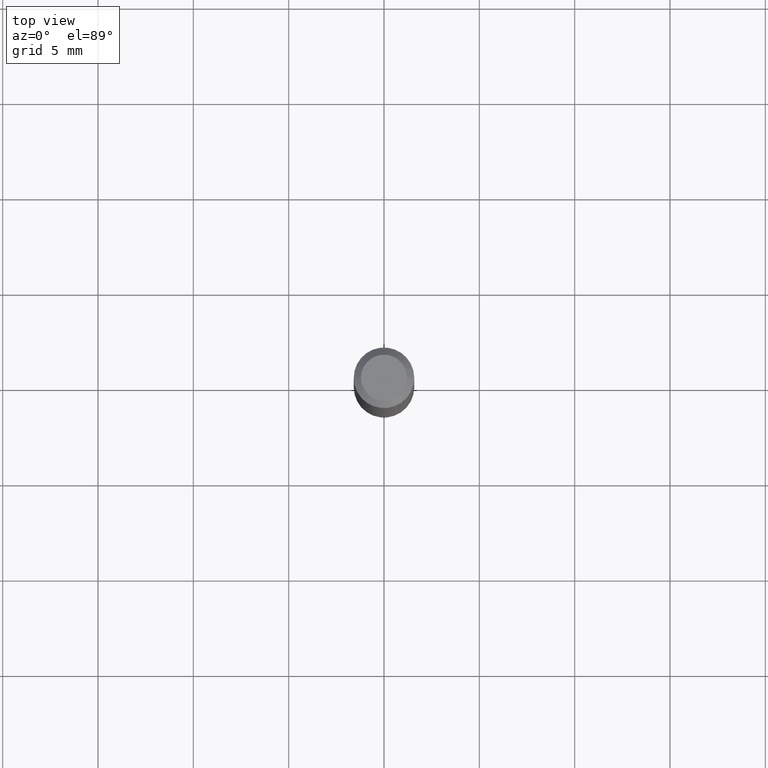
[diagram: clean part render]
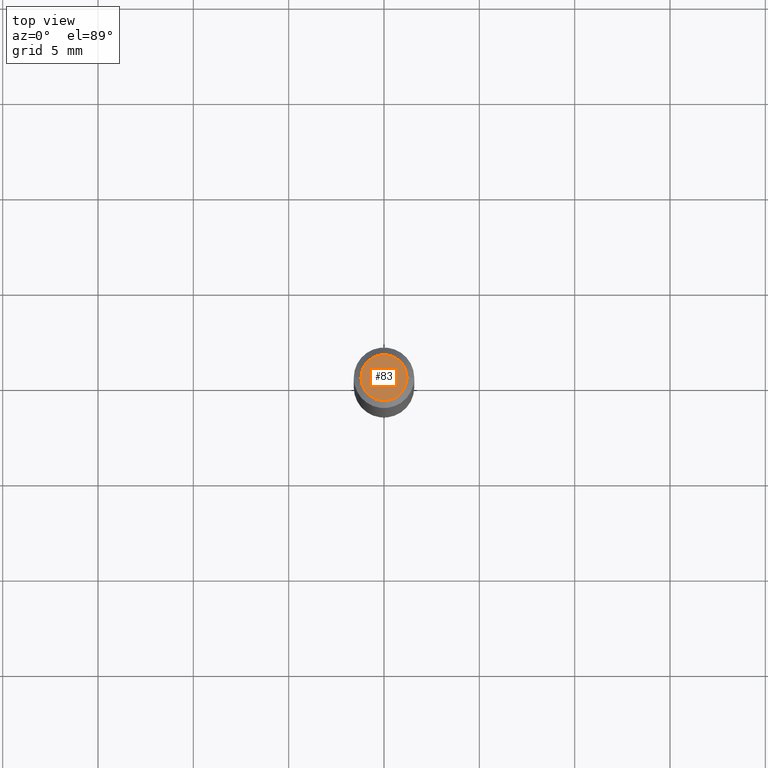
[diagram: same view with one face highlighted and labeled with its STEP entity id]
A machine part, top view. The second image highlights one B-rep face of the part: STEP entity #83.
In plain terms, the highlighted planar face has unit normal (0, -0, -1).
Its self-contained STEP definition (entity closure, byte-faithful):
#37 = AXIS2_PLACEMENT_3D ( 'NONE', #470, #389, #183 ) ;
#47 = PLANE ( 'NONE',  #114 ) ;
#59 = ORIENTED_EDGE ( 'NONE', *, *, #198, .T. ) ;
#76 = DIRECTION ( 'NONE',  ( 1.000000000000000000, -6.982962677686266711E-15, 4.852736867747365086E-29 ) ) ;
#83 = ADVANCED_FACE ( 'NONE', ( #440 ), #47, .F. ) ;
#114 = AXIS2_PLACEMENT_3D ( 'NONE', #199, #453, #124 ) ;
#115 = DIRECTION ( 'NONE',  ( -2.445468806185136597E-29, 3.491481338843145583E-15, 1.000000000000000000 ) ) ;
#120 = CARTESIAN_POINT ( 'NONE',  ( -6.680649051745406845E-45, 9.538196290434862081E-31, 2.731847993664263218E-16 ) ) ;
#121 = AXIS2_PLACEMENT_3D ( 'NONE', #120, #115, #76 ) ;
#124 = DIRECTION ( 'NONE',  ( -1.000000000000000000, 6.982962677686265922E-15, -4.876176775795935793E-29 ) ) ;
#134 = CIRCLE ( 'NONE', #121, 0.04750000000000000749 ) ;
#137 = VERTEX_POINT ( 'NONE', #386 ) ;
#141 = CIRCLE ( 'NONE', #37, 0.04750000000000000749 ) ;
#183 = DIRECTION ( 'NONE',  ( 1.000000000000000000, -6.982962677686266711E-15, 4.852736867747365086E-29 ) ) ;
#198 = EDGE_CURVE ( 'NONE', #137, #223, #141, .T. ) ;
#199 = CARTESIAN_POINT ( 'NONE',  ( 3.316907271900976589E-16, 0.04750000000000000749, -2.925296391183627249E-17 ) ) ;
#212 = EDGE_CURVE ( 'NONE', #223, #137, #134, .T. ) ;
#223 = VERTEX_POINT ( 'NONE', #462 ) ;
#290 = EDGE_LOOP ( 'NONE', ( #59, #498 ) ) ;
#386 = CARTESIAN_POINT ( 'NONE',  ( -0.04750000000000000749, 3.578768372314221353E-16, 2.731847993664239060E-16 ) ) ;
#389 = DIRECTION ( 'NONE',  ( -2.445468806185136597E-29, 3.491481338843145583E-15, 1.000000000000000000 ) ) ;
#440 = FACE_OUTER_BOUND ( 'NONE', #290, .T. ) ;
#453 = DIRECTION ( 'NONE',  ( 2.438088387897960049E-29, -3.491481338843145188E-15, -1.000000000000000000 ) ) ;
#462 = CARTESIAN_POINT ( 'NONE',  ( 0.04750000000000000749, -4.035134999187568762E-16, 2.731847993664288856E-16 ) ) ;
#470 = CARTESIAN_POINT ( 'NONE',  ( -6.680649051745406845E-45, 9.538196290434862081E-31, 2.731847993664263218E-16 ) ) ;
#498 = ORIENTED_EDGE ( 'NONE', *, *, #212, .T. ) ;